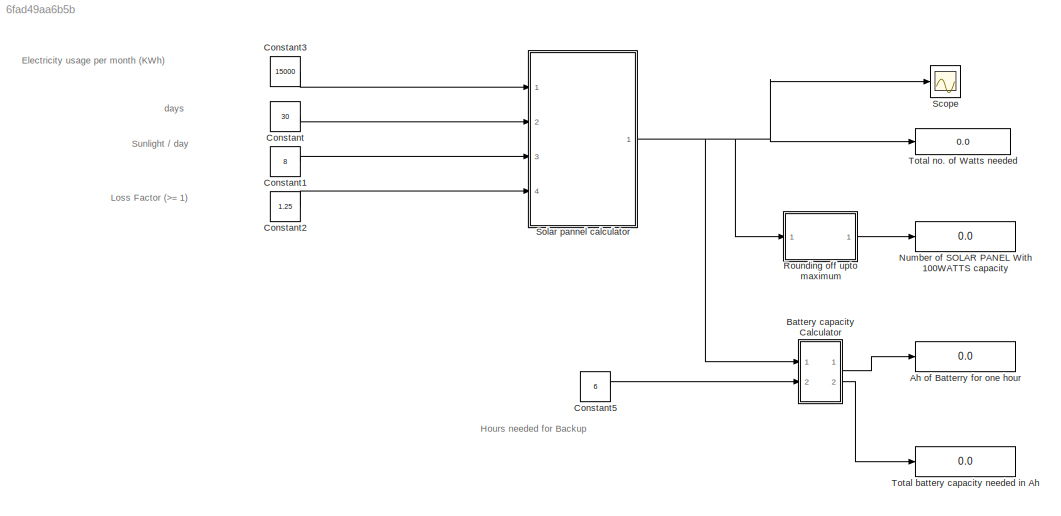
MODEL slx_6fad49aa6b5b
KIND model
CONFIG AbsTol = auto
CONFIG EnableMultiTasking = on
CONFIG FixedStep = auto
CONFIG MaxStep = auto
CONFIG MinStep = auto
CONFIG RelTol = 1e-3
CONFIG SampleTimeConstraint = Unconstrained
CONFIG Solver = ode45
CONFIG SolverName = ode45
CONFIG StartTime = 0.0
CONFIG StopTime = 10.0
BLOCK [Display] Ah of Batterry for one hour
  Decimation = 1
  Ports = [1]
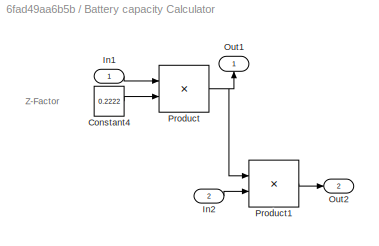
BLOCK [SubSystem] Battery capacity Calculator
  Ports = [2, 2]
  RequestExecContextInheritance = off
BLOCK [Constant] Battery capacity Calculator/Constant4
  Value = 0.2222
BLOCK [Inport] Battery capacity Calculator/In1
  IconDisplay = Port number
BLOCK [Inport] Battery capacity Calculator/In2
  IconDisplay = Port number
  Port = 2
BLOCK [Outport] Battery capacity Calculator/Out1
  IconDisplay = Port number
BLOCK [Outport] Battery capacity Calculator/Out2
  IconDisplay = Port number
  Port = 2
BLOCK [Product] Battery capacity Calculator/Product
  InputSameDT = off
  OutDataTypeStr = Inherit: Inherit via internal rule
  Ports = [2, 1]
  SaturateOnIntegerOverflow = off
BLOCK [Product] Battery capacity Calculator/Product1
  InputSameDT = off
  OutDataTypeStr = Inherit: Inherit via internal rule
  Ports = [2, 1]
  SaturateOnIntegerOverflow = off
BLOCK [Constant] Constant
  Value = 30
BLOCK [Constant] Constant1
  Value = 8
BLOCK [Constant] Constant2
  Value = 1.25
BLOCK [Constant] Constant3
  Value = 15000
BLOCK [Constant] Constant5
  Value = 6
BLOCK [Display] Number of SOLAR PANEL With 100WATTS  capacity
  Decimation = 1
  Ports = [1]
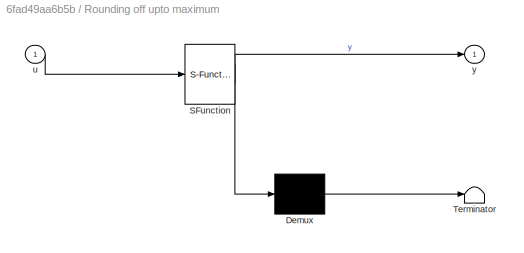
BLOCK [SubSystem] Rounding off upto maximum
  ErrorFcn = Stateflow.Translate.translate
  PermitHierarchicalResolution = ExplicitOnly
  Ports = [1, 1]
  RequestExecContextInheritance = off
  SFBlockType = MATLAB Function
  TreatAsAtomicUnit = on
BLOCK [Demux] Rounding off upto maximum/ Demux 
  Outputs = 1
  Ports = [1, 1]
BLOCK [S-Function] Rounding off upto maximum/ SFunction 
  EnableBusSupport = on
  FunctionName = sf_sfun
  PortCounts = [1 2]
  Ports = [1, 2]
  SFcnIsStateOwnerBlock = off
  SFunctionDeploymentMode = off
  Tag = Stateflow S-Function Solar 2
BLOCK [Terminator] Rounding off upto maximum/ Terminator 
BLOCK [Inport] Rounding off upto maximum/u
  IconDisplay = Port number
BLOCK [Outport] Rounding off upto maximum/y
  IconDisplay = Port number
BLOCK [Scope] Scope
  Floating = off
  NumInputPorts = 1
  Ports = [1]
  ScopeSpecificationString = Simulink.scopes.TimeScopeBlockCfg('CurrentConfiguration', extmgr.ConfigurationSet(extmgr.Configuration('Core','General UI',true),extmgr.Configuration('Core','Source UI',true),extmgr.Configuration('Sources','WiredSimulink',true,'DataLoggingSaveFormat','StructureWithTime','DataLoggingLimitDataPoints',true,'DataLoggingDecimation','1','DataLoggingDecimateData',true),extmgr.Configuration('Visuals','Tim...<+1709ch>
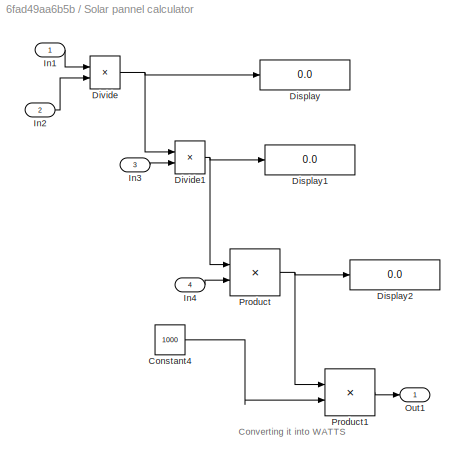
BLOCK [SubSystem] Solar pannel calculator
  Ports = [4, 1]
  RequestExecContextInheritance = off
BLOCK [Constant] Solar pannel calculator/Constant4
  Value = 1000
BLOCK [Display] Solar pannel calculator/Display
  Decimation = 1
  Ports = [1]
BLOCK [Display] Solar pannel calculator/Display1
  Decimation = 1
  Ports = [1]
BLOCK [Display] Solar pannel calculator/Display2
  Decimation = 1
  Ports = [1]
BLOCK [Product] Solar pannel calculator/Divide
  InputSameDT = off
  Inputs = */
  OutDataTypeStr = Inherit: Inherit via internal rule
  Ports = [2, 1]
  RndMeth = Floor
  SaturateOnIntegerOverflow = off
BLOCK [Product] Solar pannel calculator/Divide1
  InputSameDT = off
  Inputs = */
  OutDataTypeStr = Inherit: Inherit via internal rule
  Ports = [2, 1]
  RndMeth = Floor
  SaturateOnIntegerOverflow = off
BLOCK [Inport] Solar pannel calculator/In1
  IconDisplay = Port number
BLOCK [Inport] Solar pannel calculator/In2
  IconDisplay = Port number
  Port = 2
BLOCK [Inport] Solar pannel calculator/In3
  IconDisplay = Port number
  Port = 3
BLOCK [Inport] Solar pannel calculator/In4
  IconDisplay = Port number
  Port = 4
BLOCK [Outport] Solar pannel calculator/Out1
  IconDisplay = Port number
BLOCK [Product] Solar pannel calculator/Product
  InputSameDT = off
  OutDataTypeStr = Inherit: Inherit via internal rule
  Ports = [2, 1]
  SaturateOnIntegerOverflow = off
BLOCK [Product] Solar pannel calculator/Product1
  InputSameDT = off
  OutDataTypeStr = Inherit: Inherit via internal rule
  Ports = [2, 1]
  SaturateOnIntegerOverflow = off
BLOCK [Display] Total battery capacity needed in Ah
  Decimation = 1
  Ports = [1]
BLOCK [Display] Total no. of Watts needed 
  Decimation = 1
  Ports = [1]
ANNOTATION (root): Electricity usage per month (KWh)
ANNOTATION (root): Hours needed for Backup
ANNOTATION (root): Loss Factor (>= 1)
ANNOTATION (root): Sunlight / day
ANNOTATION (root): days
ANNOTATION Battery capacity Calculator: Z-Factor
ANNOTATION Solar pannel calculator: Converting it into WATTS
LINE Battery capacity Calculator/Constant4:1 -> Battery capacity Calculator/Product:2
LINE Battery capacity Calculator/In1:1 -> Battery capacity Calculator/Product:1
LINE Battery capacity Calculator/In2:1 -> Battery capacity Calculator/Product1:2
LINE Battery capacity Calculator/Product1:1 -> Battery capacity Calculator/Out2:1
NET Battery capacity Calculator/Product:1 -> Battery capacity Calculator/Out1:1, Battery capacity Calculator/Product1:1
LINE Battery capacity Calculator:1 -> Ah of Batterry for one hour:1
LINE Battery capacity Calculator:2 -> Total battery capacity needed in Ah:1
LINE Constant1:1 -> Solar pannel calculator:3
LINE Constant2:1 -> Solar pannel calculator:4
LINE Constant3:1 -> Solar pannel calculator:1
LINE Constant5:1 -> Battery capacity Calculator:2
LINE Constant:1 -> Solar pannel calculator:2
LINE Rounding off upto maximum:1 -> Number of SOLAR PANEL With 100WATTS  capacity:1
LINE Solar pannel calculator/Constant4:1 -> Solar pannel calculator/Product1:2
NET Solar pannel calculator/Divide1:1 -> Solar pannel calculator/Display1:1, Solar pannel calculator/Product:1
NET Solar pannel calculator/Divide:1 -> Solar pannel calculator/Display:1, Solar pannel calculator/Divide1:1
LINE Solar pannel calculator/In1:1 -> Solar pannel calculator/Divide:1
LINE Solar pannel calculator/In2:1 -> Solar pannel calculator/Divide:2
LINE Solar pannel calculator/In3:1 -> Solar pannel calculator/Divide1:2
LINE Solar pannel calculator/In4:1 -> Solar pannel calculator/Product:2
LINE Solar pannel calculator/Product1:1 -> Solar pannel calculator/Out1:1
NET Solar pannel calculator/Product:1 -> Solar pannel calculator/Display2:1, Solar pannel calculator/Product1:1
NET Solar pannel calculator:1 -> Battery capacity Calculator:1, Rounding off upto maximum:1, Scope:1, Total no. of Watts needed :1
note: NET lines group one-source signal fan-out (src -> all destinations, sorted); 1:1 wires keep LINE
CHART Rounding off upto maximum states=1 transitions=1
  STATE_LABEL 'eML_blk_kernel()'
  STATE_LABEL 'SCRIPT:\nfunction y = fcn(u)\n% This block supports an embeddable subset of the MATLAB language.\n% See the help menu for details. \ny = floor(u / 100)+1;'
